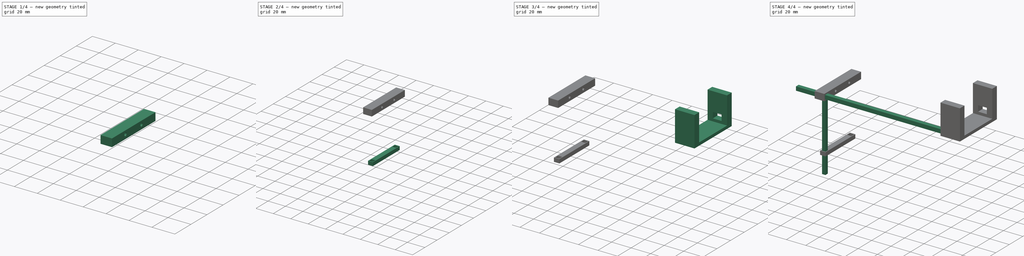
[diagram: build sequence overview — one tinted view per stage of 4, left to right]
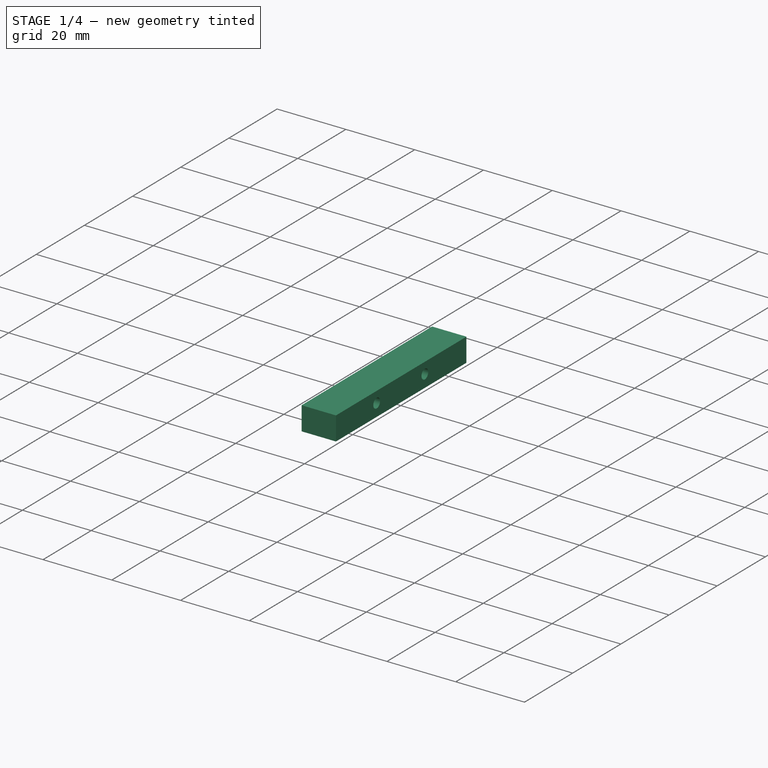
[diagram: stage 1 of 4 — iso view after this stage's code; geometry added in this stage tinted green]
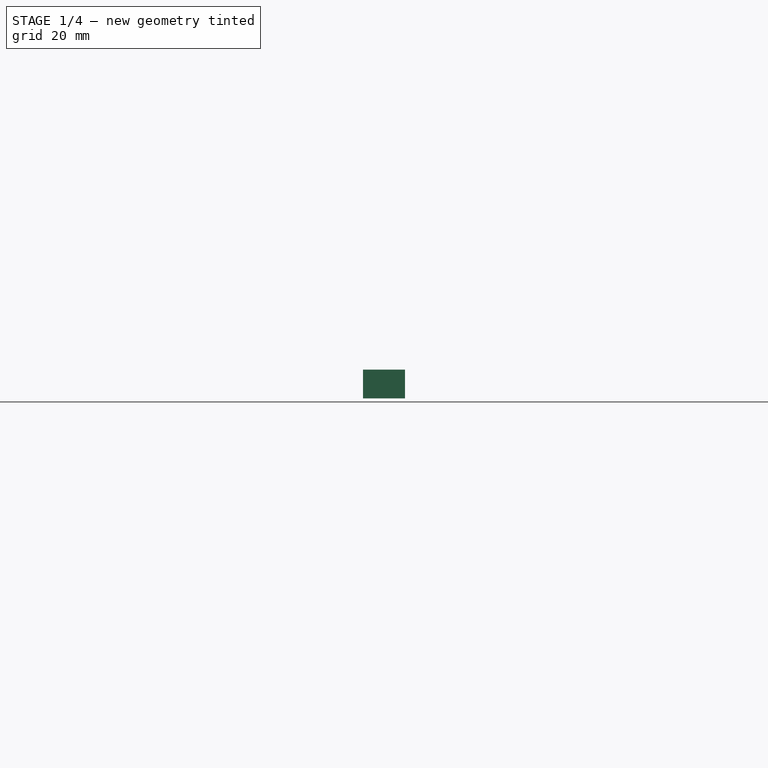
[diagram: stage 1 of 4 — front view after this stage's code; geometry added in this stage tinted green]
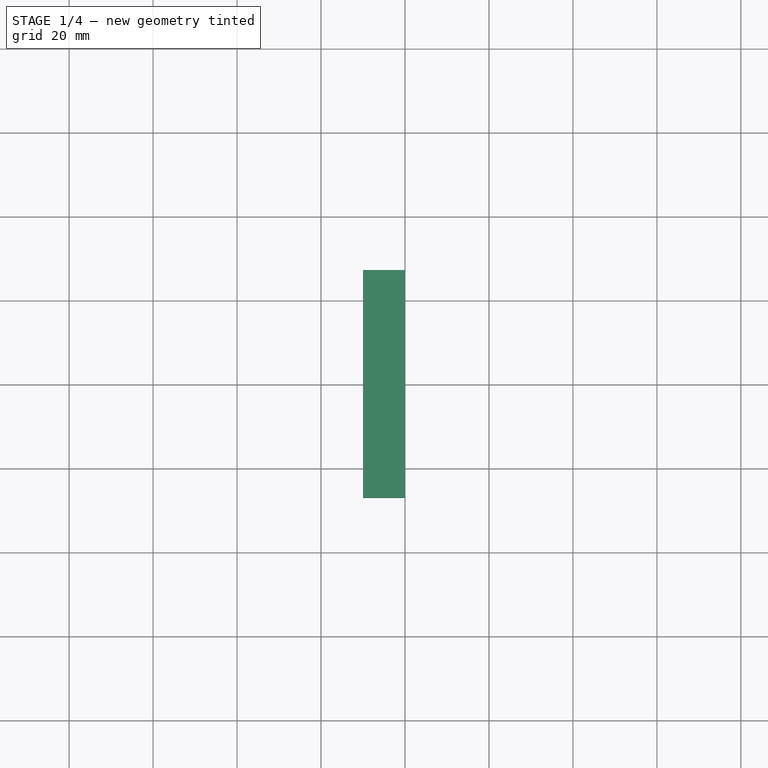
[diagram: stage 1 of 4 — top view after this stage's code; geometry added in this stage tinted green]
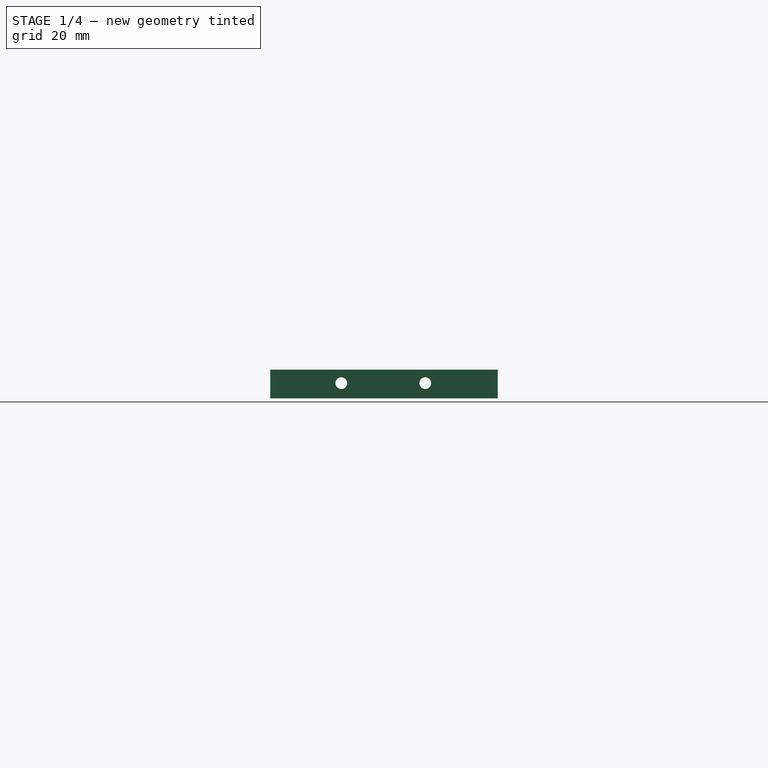
[diagram: stage 1 of 4 — right view after this stage's code; geometry added in this stage tinted green]
FCSTD DOCUMENT  (FreeCAD 0.19R24366 (Git))
Label: internalstructure
License: All rights reserved
LicenseURL: http://en.wikipedia.org/wiki/All_rights_reserved
objects: Part::FeaturePython×46, App::FeaturePython×17, App::Link×11, Sketcher::SketchObject×9, PartDesign::Pad×5, PartDesign::Body×5, App::Part×5, PartDesign::Pocket×4
note: 77 computed .brp shape members not serialized (recipe doc carries the construction recipe); baked Part::Feature solids carry a one-line shape summary decoded from their .brp
EXTERNAL_REF file=MotorAndHolder_v1.FCStd obj=Part001
EXTERNAL_REF file=Battery_VoltaicV70.FCStd obj=Part
EXTERNAL_REF file=MotorAndHolder_v1.FCStd obj=Part006
EXTERNAL_REF file=test.FCStd obj=Part

FEATURE [PartDesign::Body] Body004
  Group = -> [Sketch009,Sketch010,Pad004,Pocket004]
  Origin = -> Origin009
  Tip = -> Pocket004
FEATURE [App::Part] Part004  label="BatteryBottomConnector"
  Group = -> [Body004]
  Origin = -> Origin008
FEATURE [App::Link] Link010  label="StarboardConnector4x4x120mm001"
  LinkPlacement = pos=(-77,65,-6) rot=(0,0,1;0rad)
  LinkedObject = -> Part001
  Placement = pos=(-77,65,-6) rot=(0,0,1;0rad)
FEATURE [App::Link] Link009  label="PortConnector4x4x120mm"
  LinkPlacement = pos=(-77,17.3124,-6) rot=(0,0,1;0rad)
  LinkedObject = -> Part001
  Placement = pos=(-77,17.3124,-6) rot=(0,0,1;0rad)
FEATURE [App::Link] Link008  label="ServoHolderPart001"
  LinkPlacement = pos=(-82,17.1616,-6.09826) rot=(0,0,1;0rad)
  LinkedObject = -> Part
  Placement = pos=(-82,17.1616,-6.09826) rot=(0,0,1;0rad)
FEATURE [App::Link] Link013  label="Connector4x4x50mm_1"
  LinkPlacement = pos=(-58.3113,-32.47,-6.94535) rot=(0.406768,0.422033,-0.810202;1.09346rad)
  LinkedObject = -> Part003
  Placement = pos=(-58.3113,-32.47,-6.94535) rot=(0.406768,0.422033,-0.810202;1.09346rad)
FEATURE [App::Link] Link014  label="Connector4x4x50mm_002"
  LinkPlacement = pos=(-27.2761,-11.2422,-0.204668) rot=(0.406768,0.422033,-0.810202;1.09346rad)
  LinkedObject = -> Part003
  Placement = pos=(-27.2761,-11.2422,-0.204668) rot=(0.406768,0.422033,-0.810202;1.09346rad)
FEATURE [App::Link] Link015  label="BatteryBottomConnector001"
  LinkPlacement = pos=(-61.995,-22.0909,-22.4278) rot=(0.406768,0.422033,-0.810202;1.09346rad)
  LinkedObject = -> Part004
  Placement = pos=(-61.995,-22.0909,-22.4278) rot=(0.406768,0.422033,-0.810202;1.09346rad)
FEATURE [App::Link] Link  label="MotorHolder"
  LinkPlacement = pos=(-150.627,76.7929,74.012) rot=(0.941206,0.243222,0.234468;2.26967rad)
  LinkedObject = -> <external MotorAndHolder_v1.FCStd>#Part001
  Placement = pos=(-150.627,76.7929,74.012) rot=(0.941206,0.243222,0.234468;2.26967rad)
FEATURE [App::Link] Link016  label="PartBatteryVoltaicV70"
  LinkPlacement = pos=(-373,0.000171781,-93) rot=(0.548548,0.681735,0.484079;4.28615rad)
  LinkedObject = -> <external Battery_VoltaicV70.FCStd>#Part
  Placement = pos=(-373,0.000171781,-93) rot=(0.548548,0.681735,0.484079;4.28615rad)
FEATURE [App::Link] Link017  label="ConnectorRod2.5x200mm001"
  LinkPlacement = pos=(-93.8892,30.3514,15.7073) rot=(-0.529261,-0.748426,-0.399677;1.08373rad)
  LinkedObject = -> <external MotorAndHolder_v1.FCStd>#Part006
  Placement = pos=(-93.8892,30.3514,15.7073) rot=(-0.529261,-0.748426,-0.399677;1.08373rad)
FEATURE [App::Link] Link018  label="ConnectorRod2.5x200mm002"
  LinkPlacement = pos=(-114.238,23.92,16.3093) rot=(-0.736688,-0.674933,-0.041909;0.985761rad)
  LinkedObject = -> <external MotorAndHolder_v1.FCStd>#Part006
  Placement = pos=(-114.238,23.92,16.3093) rot=(-0.736688,-0.674933,-0.041909;0.985761rad)
FEATURE [Sketcher::SketchObject] Sketch004
  FullyConstrained = false
  Placement = pos=(-120,-2.7e-14,-4e-14) rot=(0.57735,0.57735,-0.57735;4.18879rad)
  sketch-geometry (4):
    g0: LineSegment StartX=-26.9181 StartY=22.4909 StartZ=0 EndX=27.2601 EndY=22.4909 EndZ=0
    g1: LineSegment StartX=27.2601 StartY=22.4909 StartZ=0 EndX=27.2601 EndY=15.6382 EndZ=0
    g2: LineSegment StartX=27.2601 StartY=15.6382 StartZ=0 EndX=-26.9181 EndY=15.6382 EndZ=0
    g3: LineSegment StartX=-26.9181 StartY=15.6382 StartZ=0 EndX=-26.9181 EndY=22.4909 EndZ=0
  constraints (8):
    c: Coincident(g0,g1)
    c: Coincident(g1,g2)
    c: Coincident(g2,g3)
    c: Coincident(g3,g0)
    c: Horizontal(g0)
    c: Horizontal(g2)
    c: Vertical(g1)
    c: Vertical(g3)
FEATURE [PartDesign::Pad] Pad002
  Direction = (1,1,1)
  Length = 10
  Length2 = 100
  Placement = pos=(-120,-2.7e-14,-4e-14) rot=(0.57735,0.57735,-0.57735;4.18879rad)
  Profile = -> Sketch004
  Type = 0
FEATURE [Sketcher::SketchObject] Sketch011
  ExternalGeometry = -> [Pad002]
  FullyConstrained = false
  MapMode = 5
  Placement = pos=(-130,-2.7e-14,-4e-14) rot=(0.57735,0.57735,-0.57735;4.18879rad)
  Support = -> [Pad002]
  sketch-geometry (6):
    g0: Circle CenterX=-10 CenterY=18.8622 CenterZ=0 NormalX=0 NormalY=0 NormalZ=1 AngleXU=0 Radius=1.4
    g1: Circle CenterX=10 CenterY=18.8622 CenterZ=0 NormalX=0 NormalY=0 NormalZ=1 AngleXU=0 Radius=1.4
    g2: LineSegment StartX=10 StartY=18.8622 StartZ=0 EndX=0 EndY=18.8622 EndZ=0
    g3: LineSegment StartX=-10 StartY=18.8622 StartZ=0 EndX=0 EndY=18.8622 EndZ=0
    g4: LineSegment StartX=-26.9181 StartY=18.8622 StartZ=0 EndX=-10 EndY=18.8622 EndZ=0
    g5: LineSegment StartX=10 StartY=18.8622 StartZ=0 EndX=27.2601 EndY=18.8622 EndZ=0
  constraints (16):
    c: Horizontal(g1,g0)
    c: Coincident(g2,g1)
    c: PointOnObject(g2,g-2)
    c: Horizontal(g2)
    c: Coincident(g3,g0)
    c: Coincident(g3,g2)
    c: Equal(g2,g3)
    c: DistanceX(g0,g1) = 20
    c: Equal(g0,g1)
    c: Diameter(g0) = 2.8
    c: PointOnObject(g4,g-4)
    c: Horizontal(g4)
    c: Coincident(g5,g1)
    c: PointOnObject(g5,g-3)
    c: Horizontal(g5)
    c: Coincident(g0,g4)
FEATURE [PartDesign::Pocket] Pocket005
  BaseFeature = -> Pad002
  Length = 25
  Length2 = 100
  Placement = pos=(-120,-2.7e-14,-4e-14) rot=(0.57735,0.57735,-0.57735;4.18879rad)
  Profile = -> Sketch011
  Type = 0
FEATURE [PartDesign::Body] Body002
  Group = -> [Sketch004,Pad002,Sketch011,Pocket005]
  Origin = -> Origin005
  Tip = -> Pocket005
FEATURE [App::Part] Part002  label="BatteryVerticalConnect"
  Group = -> [Body002]
  Origin = -> Origin004
  Placement = pos=(-61.525,-15.3822,-45.9494) rot=(0.873997,-0.430968,-0.22449;3.56776rad)
FEATURE [App::Link] Link019  label="Connector"
  LinkPlacement = pos=(-178.657,-39.8223,-130.615) rot=(-0.086869,0.081007,0.992921;1.64769rad)
  LinkedObject = -> <external test.FCStd>#Part
  Placement = pos=(-178.657,-39.8223,-130.615) rot=(-0.086869,0.081007,0.992921;1.64769rad)
FEATURE [Part::FeaturePython] Parts001  # WARN: FeaturePython — macro-defined, semantics opaque (R4)
  Group = -> [Link008,Link009,Link010,Link014,Link013,Link015,Link,Link017,Link018,Part002,Link019]
  GroupMode = 0
FEATURE [Part::FeaturePython] _Element024  # link proxy (typed FeaturePython)
  Detach = false
  LinkTransform = true
  LinkedObject = -> Link010 [Body001.Pad001.Face4]
  _Parent = -> Elements001
FEATURE [Part::FeaturePython] _Element028  # link proxy (typed FeaturePython)
  Detach = false
  LinkTransform = true
  LinkedObject = -> Link009 [Body001.Pad001.Face2]
  _Parent = -> Elements001
FEATURE [Part::FeaturePython] _Element030  # link proxy (typed FeaturePython)
  Detach = false
  LinkTransform = true
  LinkedObject = -> Link010 [Body001.Pad001.Face6]
  _Parent = -> Elements001
FEATURE [Part::FeaturePython] _Element031  # link proxy (typed FeaturePython)
  Detach = false
  LinkTransform = true
  LinkedObject = -> Link009 [Body001.Pad001.Face6]
  _Parent = -> Elements001
FEATURE [Part::FeaturePython] _Element032  # link proxy (typed FeaturePython)
  Detach = false
  LinkTransform = true
  LinkedObject = -> Link008 [Body.Pocket001.Face23]
  _Parent = -> Elements001
FEATURE [Part::FeaturePython] _Element033  # link proxy (typed FeaturePython)
  Detach = false
  LinkTransform = true
  LinkedObject = -> Link010 [Body001.Pad001.Face5]
  _Parent = -> Elements001
FEATURE [Part::FeaturePython] _Element034  # link proxy (typed FeaturePython)
  Detach = false
  LinkTransform = true
  LinkedObject = -> Link008 [Body.Pocket001.Face22]
  _Parent = -> Elements001
FEATURE [App::FeaturePython] ElementLink014  label="_Element034"  # link proxy (typed FeaturePython)
  LinkTransform = true
  LinkedObject = -> _Element034
  _Parent = -> Constraint007
FEATURE [Part::FeaturePython] _Element035  # link proxy (typed FeaturePython)
  Detach = false
  LinkTransform = true
  LinkedObject = -> Link009 [Body001.Pad001.Face4]
  _Parent = -> Elements001
FEATURE [App::FeaturePython] ElementLink015  label="_Element035"  # link proxy (typed FeaturePython)
  LinkTransform = true
  LinkedObject = -> _Element035
  _Parent = -> Constraint007
FEATURE [App::FeaturePython] Constraint007  label="SameOrientation001"  # WARN: FeaturePython — macro-defined, semantics opaque (R4)
  Disabled = false
  Group = -> [ElementLink014,ElementLink015]
  _ConstraintType = 2
  _Parent = -> Constraints001
FEATURE [Part::FeaturePython] _Element044  # link proxy (typed FeaturePython)
  Detach = false
  LinkTransform = true
  LinkedObject = -> Link013 [Body003.Pad003.Face2]
  _Parent = -> Elements001
FEATURE [Part::FeaturePython] _Element037  # link proxy (typed FeaturePython)
  Detach = false
  LinkTransform = true
  LinkedObject = -> Link013 [Body003.Pad003.Face5]
  _Parent = -> Elements001
FEATURE [Part::FeaturePython] _Element046  # link proxy (typed FeaturePython)
  Detach = false
  LinkTransform = true
  LinkedObject = -> Link014 [Body003.Pad003.Face5]
  _Parent = -> Elements001
FEATURE [Part::FeaturePython] _Element047  # link proxy (typed FeaturePython)
  Detach = false
  LinkTransform = true
  LinkedObject = -> Link014 [Body003.Pad003.Face1]
  _Parent = -> Elements001
FEATURE [Part::FeaturePython] _Element026  # link proxy (typed FeaturePython)
  Detach = false
  LinkTransform = true
  LinkedObject = -> Link010 [Body001.Pad001.Face3]
  _Parent = -> Elements001
FEATURE [Part::FeaturePython] _Element053  # link proxy (typed FeaturePython)
  Detach = false
  LinkTransform = true
  LinkedObject = -> Link009 [Body001.Pad001.Face3]
  _Parent = -> Elements001
FEATURE [Part::FeaturePython] _Element054  # link proxy (typed FeaturePython)
  Detach = false
  LinkTransform = true
  LinkedObject = -> Link015 [Body004.Pocket004.Face16]
  _Parent = -> Elements001
FEATURE [App::FeaturePython] ElementLink032  label="_Element054"  # link proxy (typed FeaturePython)
  LinkTransform = true
  LinkedObject = -> _Element054
  _Parent = -> Constraint016
FEATURE [Part::FeaturePython] _Element055  # link proxy (typed FeaturePython)
  Detach = false
  LinkTransform = true
  LinkedObject = -> Link014 [Body003.Pad003.Face6]
  _Parent = -> Elements001
FEATURE [App::FeaturePython] ElementLink033  label="_Element055"  # link proxy (typed FeaturePython)
  LinkTransform = true
  LinkedObject = -> _Element055
  _Parent = -> Constraint016
FEATURE [App::FeaturePython] Constraint016  label="PlaneCoincident004"  # WARN: FeaturePython — macro-defined, semantics opaque (R4)
  Angle = 0
  AnglePitch = 0
  AngleRoll = 0
  Cascade = false
  Disabled = false
  Group = -> [ElementLink032,ElementLink033]
  LockAngle = false
  Multiply = false
  OffsetX = 0
  OffsetY = 0
  _ConstraintType = 35
  _Parent = -> Constraints001
FEATURE [Part::FeaturePython] _Element056  # link proxy (typed FeaturePython)
  Detach = false
  LinkTransform = true
  LinkedObject = -> Link014 [Body003.Pad003.Face4]
  _Parent = -> Elements001
FEATURE [App::FeaturePython] ElementLink034  label="_Element056"  # link proxy (typed FeaturePython)
  LinkTransform = true
  LinkedObject = -> _Element056
  _Parent = -> Constraint017
FEATURE [Part::FeaturePython] _Element057  # link proxy (typed FeaturePython)
  Detach = false
  LinkTransform = true
  LinkedObject = -> Link015 [Body004.Pocket004.Face13]
  _Parent = -> Elements001
FEATURE [App::FeaturePython] ElementLink035  label="_Element057"  # link proxy (typed FeaturePython)
  LinkTransform = true
  LinkedObject = -> _Element057
  _Parent = -> Constraint017
FEATURE [App::FeaturePython] Constraint017  label="MultiParallel001"  # WARN: FeaturePython — macro-defined, semantics opaque (R4)
  Angle = 0
  AnglePitch = 0
  AngleRoll = 0
  Disabled = false
  Group = -> [ElementLink034,ElementLink035]
  LockAngle = false
  _ConstraintType = 291
  _Parent = -> Constraints001
FEATURE [App::FeaturePython] Constraints001  # WARN: FeaturePython — macro-defined, semantics opaque (R4)
  Group = -> [Constraint007,Constraint016,Constraint017,Constraint018,Constraint020]
  _Version = 1
FEATURE [Part::FeaturePython] _Element039  # link proxy (typed FeaturePython)
  Detach = false
  LinkTransform = true
  LinkedObject = -> Link013 [Body003.Pad003.Face1]
  _Parent = -> Elements001
FEATURE [Part::FeaturePython] _Element041  # link proxy (typed FeaturePython)
  Detach = false
  LinkTransform = true
  LinkedObject = -> Link013 [Body003.Pad003.Face4]
  _Parent = -> Elements001
FEATURE [Part::FeaturePython] _Element050  # link proxy (typed FeaturePython)
  Detach = false
  LinkTransform = true
  LinkedObject = -> Link010 [Body001.Pad001.Face1]
  _Parent = -> Elements001
FEATURE [App::FeaturePython] Elements001  # WARN: FeaturePython — macro-defined, semantics opaque (R4)
  Group = -> [_Element024,_Element026,_Element028,_Element030,_Element031,_Element032,_Element033,_Element034,_Element035,_Element037,_Element039,_Element041,_Element044,_Element046,_Element047,_Element050,_Element053,_Element054,_Element055,_Element056,_Element057,Element,Element001,Element002,Element003,Element004,_Element,_Element061,_Element062,_Element064,_Element065,Element005,Element006,Element007,+10 more]
FEATURE [Part::FeaturePython] Assembly001  label="InternalHolder"  # WARN: FeaturePython — macro-defined, semantics opaque (R4)
  AutoRelax = true
  BuildShape = 0
  Freeze = false
  Group = -> [Constraints001,Elements001,Parts001]
  Verbose = false
  _SolverType = 1
  _Version = 1
FEATURE [Part::FeaturePython] Element  # link proxy (typed FeaturePython)
  Detach = false
  LinkTransform = true
  LinkedObject = -> Link015 [Body004.Pocket004.Face4]
  _Parent = -> Elements001
FEATURE [Part::FeaturePython] Element001  # link proxy (typed FeaturePython)
  Detach = false
  LinkTransform = true
  LinkedObject = -> Link014 [Body003.Pad003.Face2]
  _Parent = -> Elements001
FEATURE [Part::FeaturePython] Element002  # link proxy (typed FeaturePython)
  Detach = false
  LinkTransform = true
  LinkedObject = -> Link008 [Body.Pocket001.Face1]
  _Parent = -> Elements001
FEATURE [Part::FeaturePython] Element003  # link proxy (typed FeaturePython)
  Detach = false
  LinkTransform = true
  LinkedObject = -> Link008 [Body.Pocket001.Face2]
  _Parent = -> Elements001
FEATURE [Part::FeaturePython] Element004  # link proxy (typed FeaturePython)
  Detach = false
  LinkTransform = true
  LinkedObject = -> Link008 [Body.Pocket001.Face11]
  _Parent = -> Elements001
FEATURE [Part::FeaturePython] _Element  # link proxy (typed FeaturePython)
  Detach = false
  LinkTransform = true
  LinkedObject = -> Link [Body001.Pocket003.Face17]
  _Parent = -> Elements001
FEATURE [Part::FeaturePython] _Element061  # link proxy (typed FeaturePython)
  Detach = false
  LinkTransform = true
  LinkedObject = -> Link017 [Body006.Pad006.Face1]
  _Parent = -> Elements001
FEATURE [App::FeaturePython] Constraint018  label="AxialAlignment001"  # WARN: FeaturePython — macro-defined, semantics opaque (R4)
  Angle = 0
  AnglePitch = 0
  AngleRoll = 0
  Disabled = false
  Group = -> [ElementLink037,ElementLink038]
  LockAngle = false
  Multiply = false
  _ConstraintType = 36
  _Parent = -> Constraints001
FEATURE [App::FeaturePython] ElementLink037  label="_Element062"  # link proxy (typed FeaturePython)
  LinkTransform = true
  LinkedObject = -> _Element062
  _Parent = -> Constraint018
FEATURE [Part::FeaturePython] _Element062  # link proxy (typed FeaturePython)
  Detach = false
  LinkTransform = true
  LinkedObject = -> Link [Body001.Pocket004.Face17]
  _Parent = -> Elements001
FEATURE [App::FeaturePython] ElementLink038  label="_Element061"  # link proxy (typed FeaturePython)
  LinkTransform = true
  LinkedObject = -> _Element061
  _Parent = -> Constraint018
FEATURE [Part::FeaturePython] _Element064  # link proxy (typed FeaturePython)
  Detach = false
  LinkTransform = true
  LinkedObject = -> Link018 [Body006.Pad006.Face1]
  _Parent = -> Elements001
FEATURE [App::FeaturePython] Constraint020  label="AxialAlignment003"  # WARN: FeaturePython — macro-defined, semantics opaque (R4)
  Angle = 0
  AnglePitch = 0
  AngleRoll = 0
  Disabled = false
  Group = -> [ElementLink041,ElementLink042]
  LockAngle = false
  Multiply = false
  _ConstraintType = 36
  _Parent = -> Constraints001
FEATURE [App::FeaturePython] ElementLink041  label="_Element064"  # link proxy (typed FeaturePython)
  LinkTransform = true
  LinkedObject = -> _Element064
  _Parent = -> Constraint020
FEATURE [App::FeaturePython] ElementLink042  label="_Element065"  # link proxy (typed FeaturePython)
  LinkTransform = true
  LinkedObject = -> _Element065
  _Parent = -> Constraint020
FEATURE [Part::FeaturePython] _Element065  # link proxy (typed FeaturePython)
  Detach = false
  LinkTransform = true
  LinkedObject = -> Link [Body001.Pocket004.Face18]
  _Parent = -> Elements001
FEATURE [Part::FeaturePython] Element005  # link proxy (typed FeaturePython)
  Detach = false
  LinkTransform = true
  LinkedObject = -> Link [Body001.Pocket004.Face7]
  _Parent = -> Elements001
FEATURE [Part::FeaturePython] Element006  # link proxy (typed FeaturePython)
  Detach = false
  LinkTransform = true
  LinkedObject = -> Link [Body001.Pocket004.Face4]
  _Parent = -> Elements001
FEATURE [Part::FeaturePython] Element007  # link proxy (typed FeaturePython)
  Detach = false
  LinkTransform = true
  LinkedObject = -> Link [Body001.Pocket004.Face3]
  _Parent = -> Elements001
FEATURE [Part::FeaturePython] Element008  # link proxy (typed FeaturePython)
  Detach = false
  LinkTransform = true
  LinkedObject = -> Link [Body001.Pocket004.Face14]
  _Parent = -> Elements001
FEATURE [Part::FeaturePython] Element009  # link proxy (typed FeaturePython)
  Detach = false
  LinkTransform = true
  LinkedObject = -> Link [Body001.Pocket004.Face13]
  _Parent = -> Elements001
FEATURE [Part::FeaturePython] Element010  # link proxy (typed FeaturePython)
  Detach = false
  LinkTransform = true
  LinkedObject = -> Link [Body001.Pocket004.Edge11]
  _Parent = -> Elements001
FEATURE [Part::FeaturePython] Element011  # link proxy (typed FeaturePython)
  Detach = false
  LinkTransform = true
  LinkedObject = -> Link [Body001.Pocket004.Face5]
  _Parent = -> Elements001
FEATURE [Part::FeaturePython] Element012  # link proxy (typed FeaturePython)
  Detach = false
  LinkTransform = true
  LinkedObject = -> Link017 [Body006.Pad006.Edge1]
  _Parent = -> Elements001
FEATURE [Part::FeaturePython] Element014  # link proxy (typed FeaturePython)
  Detach = false
  LinkTransform = true
  LinkedObject = -> Link [Body001.Pocket004.Face20]
  _Parent = -> Elements001
FEATURE [Part::FeaturePython] Element015  # link proxy (typed FeaturePython)
  Detach = false
  LinkTransform = true
  LinkedObject = -> Link015 [Body004.Pocket004.Face2]
  _Parent = -> Elements001
FEATURE [Part::FeaturePython] Element018  # link proxy (typed FeaturePython)
  Detach = false
  LinkTransform = true
  LinkedObject = -> Link015 [Body004.Pocket004.Face6]
  _Parent = -> Elements001
FEATURE [Part::FeaturePython] _Element066  # link proxy (typed FeaturePython)
  Detach = false
  LinkTransform = true
  LinkedObject = -> Link019 [Body.Pad.Face10]
  _Parent = -> Elements001
FEATURE [Part::FeaturePython] _Element067  # link proxy (typed FeaturePython)
  Detach = false
  LinkTransform = true
  LinkedObject = -> Part002 [Body002.Pocket005.Face2]
  _Parent = -> Elements001
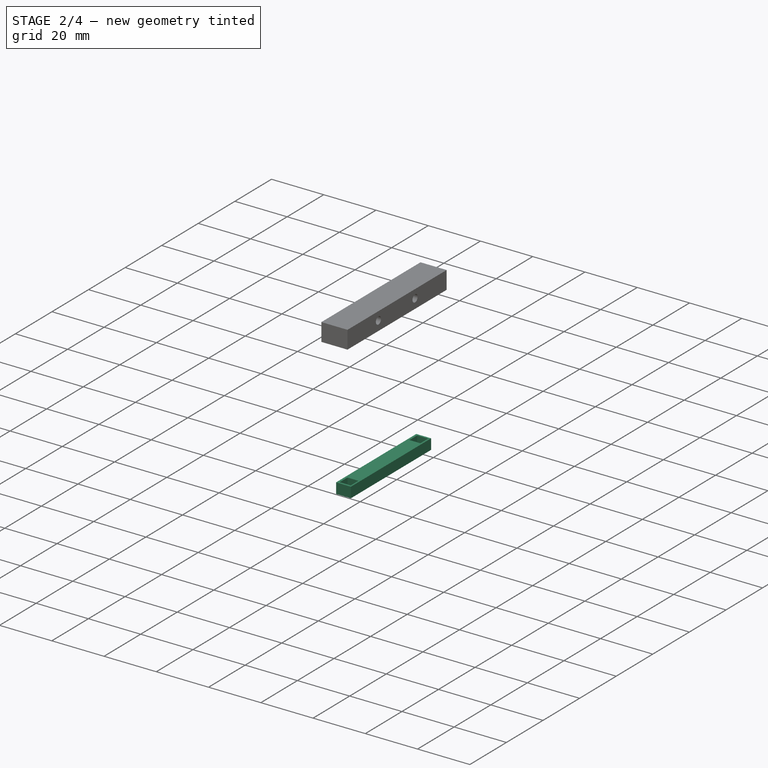
[diagram: stage 2 of 4 — iso view after this stage's code; geometry added in this stage tinted green]
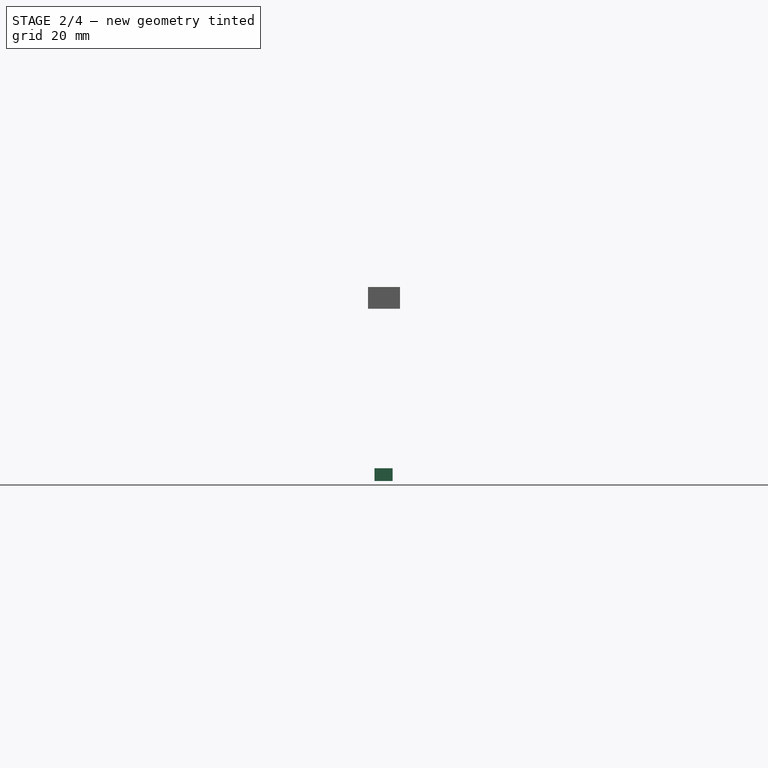
[diagram: stage 2 of 4 — front view after this stage's code; geometry added in this stage tinted green]
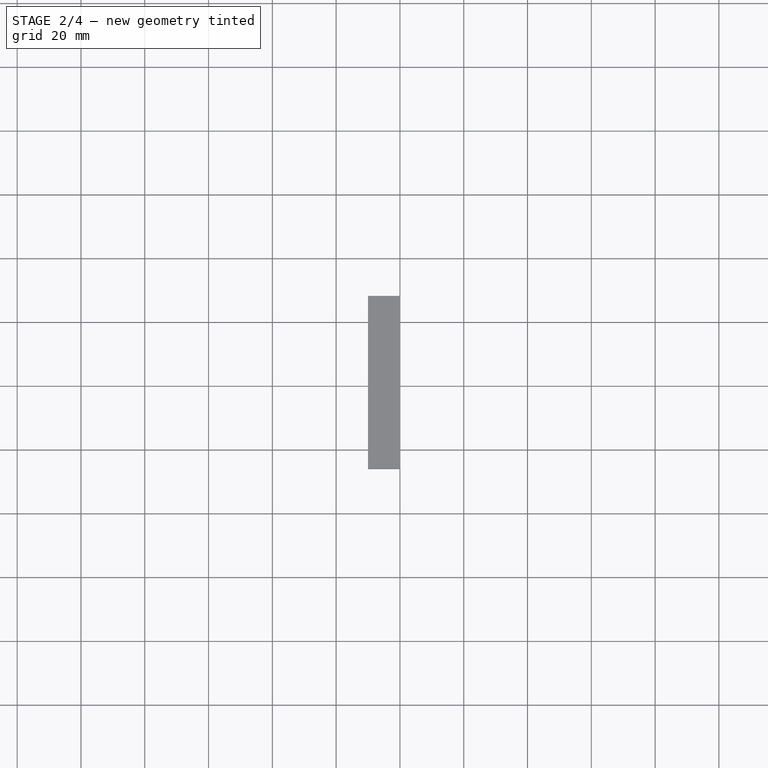
[diagram: stage 2 of 4 — top view after this stage's code; geometry added in this stage tinted green]
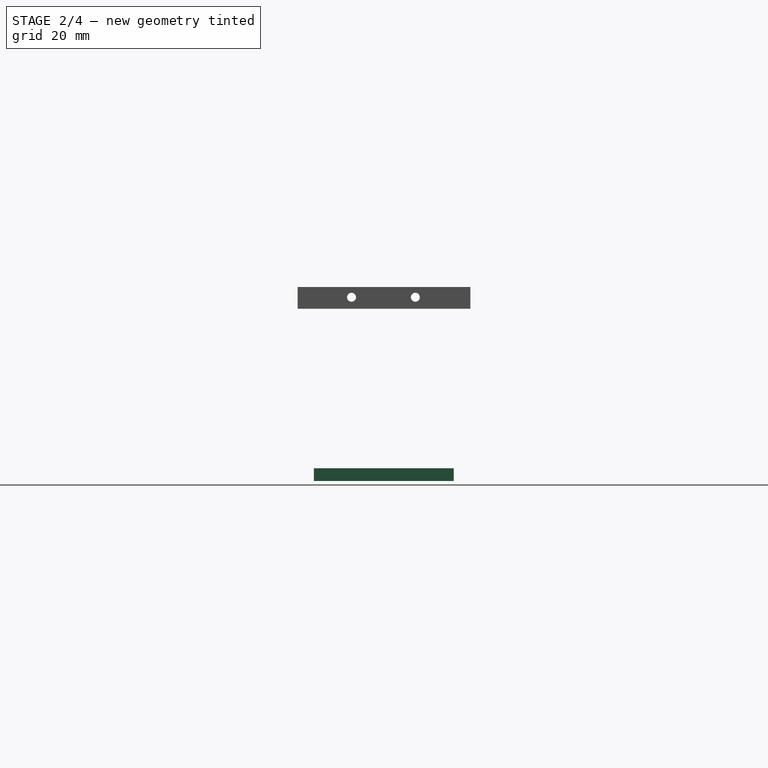
[diagram: stage 2 of 4 — right view after this stage's code; geometry added in this stage tinted green]
FEATURE [PartDesign::Body] Body003
  Group = -> [Sketch008,Pad003]
  Origin = -> Origin006
  Tip = -> Pad003
FEATURE [App::Part] Part003  label="Connector4x4x72mm"
  Group = -> [Body003]
  Origin = -> Origin007
FEATURE [Sketcher::SketchObject] Sketch009
  FullyConstrained = false
  Placement = pos=(-120,3.5e-14,-72.4909) rot=(0.707107,-0.707107,0;3.14159rad)
  sketch-geometry (4):
    g0: LineSegment StartX=-22.0524 StartY=7.96105 StartZ=0 EndX=21.7963 EndY=7.96105 EndZ=0
    g1: LineSegment StartX=21.7963 StartY=7.96105 StartZ=0 EndX=21.7963 EndY=2.30544 EndZ=0
    g2: LineSegment StartX=21.7963 StartY=2.30544 StartZ=0 EndX=-22.0524 EndY=2.30544 EndZ=0
    g3: LineSegment StartX=-22.0524 StartY=2.30544 StartZ=0 EndX=-22.0524 EndY=7.96105 EndZ=0
  constraints (8):
    c: Coincident(g0,g1)
    c: Coincident(g1,g2)
    c: Coincident(g2,g3)
    c: Coincident(g3,g0)
    c: Horizontal(g0)
    c: Horizontal(g2)
    c: Vertical(g1)
    c: Vertical(g3)
FEATURE [Sketcher::SketchObject] Sketch010
  FullyConstrained = false
  Placement = pos=(-120,2.3e-14,-72.4909) rot=(0,0,-1;1.5708rad)
  sketch-geometry (8):
    g0: LineSegment StartX=16.8176 StartY=-7.09377 StartZ=0 EndX=21.0176 EndY=-7.09377 EndZ=0
    g1: LineSegment StartX=21.0176 StartY=-7.09377 StartZ=0 EndX=21.0176 EndY=-2.89377 EndZ=0
    g2: LineSegment StartX=21.0176 StartY=-2.89377 StartZ=0 EndX=16.8176 EndY=-2.89377 EndZ=0
    g3: LineSegment StartX=16.8176 StartY=-2.89377 StartZ=0 EndX=16.8176 EndY=-7.09377 EndZ=0
    g4: LineSegment StartX=-17.1303 StartY=-7.13419 StartZ=0 EndX=-21.3303 EndY=-7.13419 EndZ=0
    g5: LineSegment StartX=-21.3303 StartY=-7.13419 StartZ=0 EndX=-21.3303 EndY=-2.93419 EndZ=0
    g6: LineSegment StartX=-21.3303 StartY=-2.93419 StartZ=0 EndX=-17.1303 EndY=-2.93419 EndZ=0
    g7: LineSegment StartX=-17.1303 StartY=-2.93419 StartZ=0 EndX=-17.1303 EndY=-7.13419 EndZ=0
  constraints (20):
    c: Coincident(g0,g1)
    c: Coincident(g1,g2)
    c: Coincident(g2,g3)
    c: Coincident(g3,g0)
    c: Horizontal(g0)
    c: Horizontal(g2)
    c: Vertical(g1)
    c: Vertical(g3)
    c: Equal(g2,g1)
    c: DistanceX(g2,g2) = 4.2
    c: Coincident(g4,g5)
    c: Coincident(g5,g6)
    c: Coincident(g6,g7)
    c: Coincident(g7,g4)
    c: Horizontal(g4)
    c: Horizontal(g6)
    c: Vertical(g5)
    c: Vertical(g7)
    c: Equal(g5,g6)
    c: DistanceX(g6,g6) = 4.2
FEATURE [PartDesign::Pad] Pad004
  Direction = (1,1,1)
  Length = 4
  Length2 = 100
  Placement = pos=(-120,3.5e-14,-72.4909) rot=(0.707107,-0.707107,0;3.14159rad)
  Profile = -> Sketch009
  Type = 0
FEATURE [PartDesign::Pocket] Pocket004
  BaseFeature = -> Pad004
  Length = 3
  Length2 = 100
  Placement = pos=(-120,3.5e-14,-72.4909) rot=(0.707107,-0.707107,0;3.14159rad)
  Profile = -> Sketch010
  Type = 0
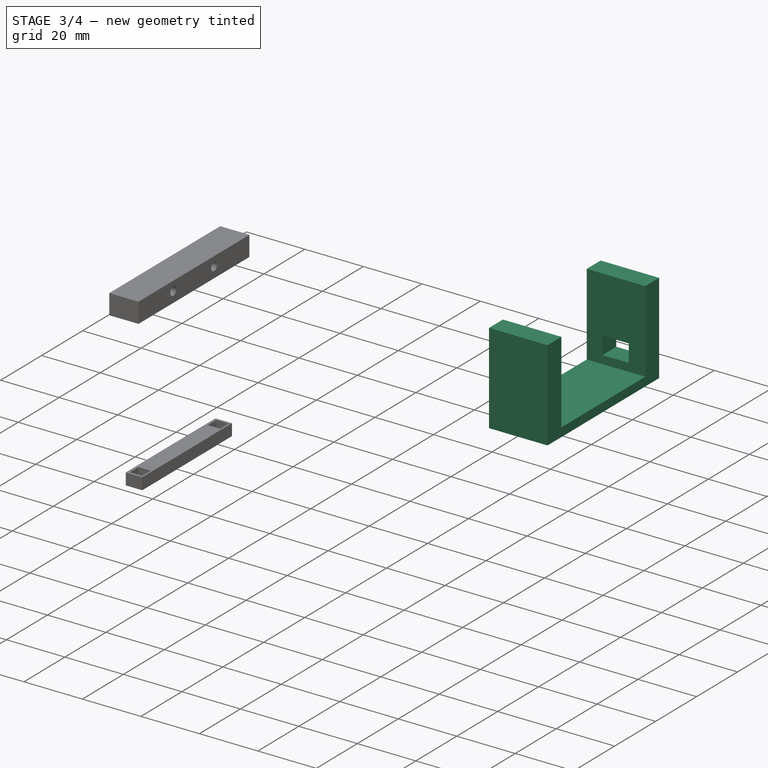
[diagram: stage 3 of 4 — iso view after this stage's code; geometry added in this stage tinted green]
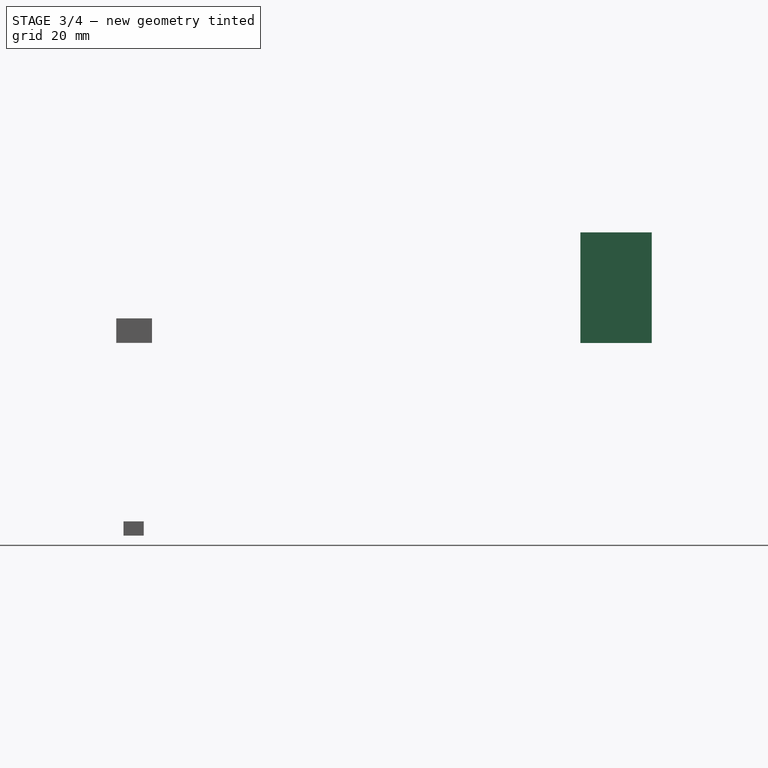
[diagram: stage 3 of 4 — front view after this stage's code; geometry added in this stage tinted green]
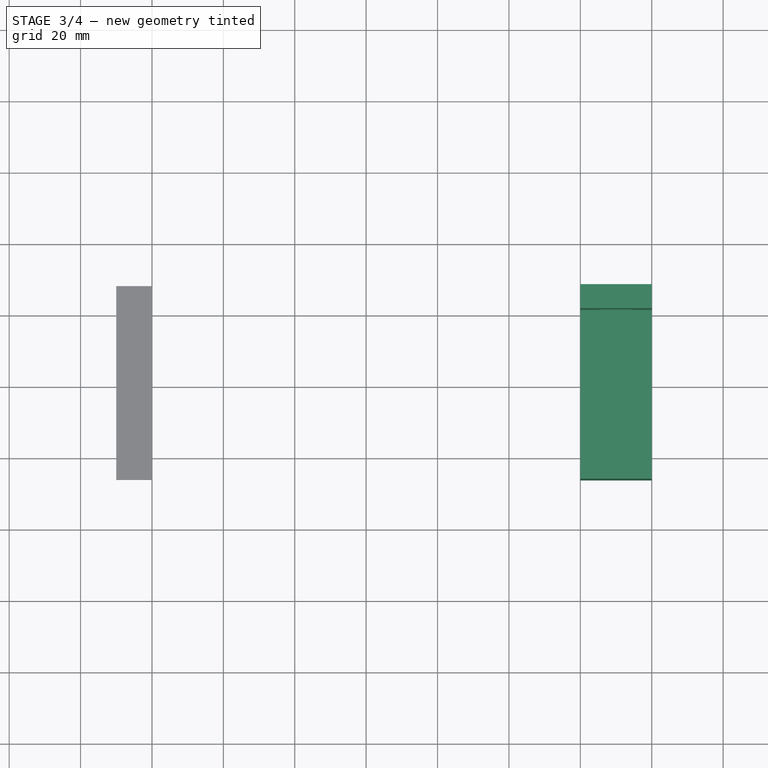
[diagram: stage 3 of 4 — top view after this stage's code; geometry added in this stage tinted green]
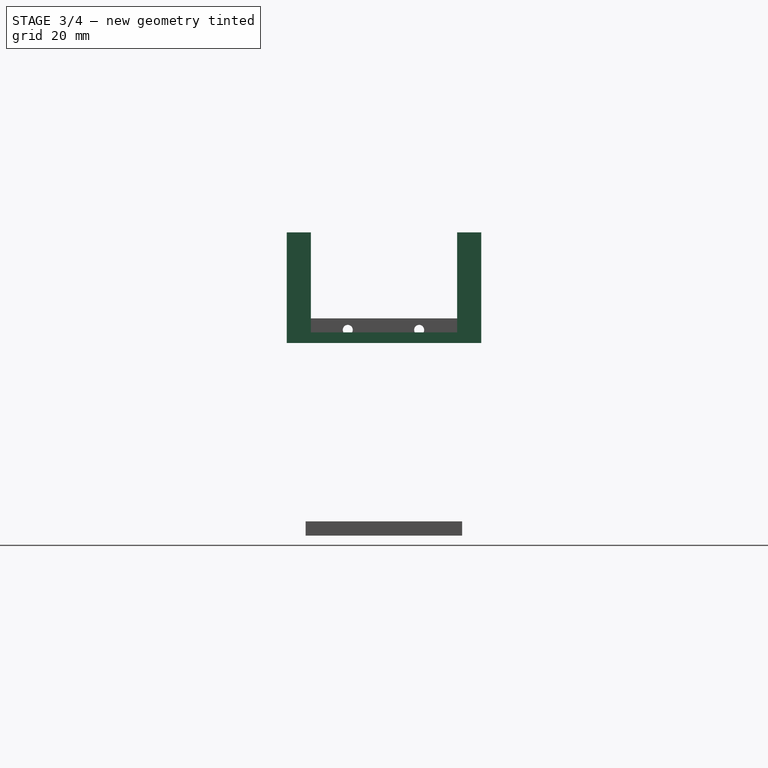
[diagram: stage 3 of 4 — right view after this stage's code; geometry added in this stage tinted green]
FEATURE [Sketcher::SketchObject] Sketch  label="ServoHolder"
  FullyConstrained = false
  MapMode = 4
  Placement = pos=(0,0,0) rot=(0.57735,0.57735,0.57735;2.0944rad)
  sketch-geometry (8):
    g0: LineSegment StartX=-27.0989 StartY=-22.5482 StartZ=0 EndX=27.4011 EndY=-22.5482 EndZ=0
    g1: LineSegment StartX=20.6511 StartY=-19.5482 StartZ=0 EndX=20.6511 EndY=8.45178 EndZ=0
    g2: LineSegment StartX=20.6511 StartY=8.45178 StartZ=0 EndX=27.4011 EndY=8.45178 EndZ=0
    g3: LineSegment StartX=-20.3489 StartY=-19.5482 StartZ=0 EndX=-20.3489 EndY=8.45178 EndZ=0
    g4: LineSegment StartX=-20.3489 StartY=8.45178 StartZ=0 EndX=-27.0989 EndY=8.45178 EndZ=0
    g5: LineSegment StartX=20.6511 StartY=-19.5482 StartZ=0 EndX=-20.3489 EndY=-19.5482 EndZ=0
    g6: LineSegment StartX=-27.0989 StartY=8.45178 StartZ=0 EndX=-27.0989 EndY=-22.5482 EndZ=0
    g7: LineSegment StartX=27.4011 StartY=8.45178 StartZ=0 EndX=27.4011 EndY=-22.5482 EndZ=0
  constraints (22):
    c: Horizontal(g0)
    c: Coincident(g1,g2)
    c: Horizontal(g2)
    c: Vertical(g1)
    c: Coincident(g3,g4)
    c: Horizontal(g4)
    c: Vertical(g3)
    c: Coincident(g5,g1)
    c: Coincident(g5,g3)
    c: Horizontal(g5)
    c: Coincident(g6,g4)
    c: Coincident(g6,g0)
    c: Vertical(g6)
    c: Coincident(g7,g2)
    c: Coincident(g7,g0)
    c: Vertical(g7)
    c: DistanceX(g0,g0) = 54.5
    c: DistanceX(g5,g5) = 41
    c: Equal(g4,g2)
    c: Horizontal(g3,g1)
    c: DistanceY(g0,g1) = 3
    c: DistanceY(g1,g1) = 28
FEATURE [PartDesign::Pad] Pad  label="ExtrudeServoHolder"
  Direction = (1,1,1)
  Length = 20
  Length2 = 100
  Placement = pos=(0,0,0) rot=(0.57735,0.57735,0.57735;2.0944rad)
  Profile = -> Sketch
  Type = 0
FEATURE [Sketcher::SketchObject] Sketch001  label="WireHoleSketch"
  FullyConstrained = false
  Placement = pos=(0,27.4011,0) rot=(0,0.707107,0.707107;3.14159rad)
  sketch-geometry (4):
    g0: LineSegment StartX=-5.36505 StartY=-10.7623 StartZ=0 EndX=-14.3651 EndY=-10.7623 EndZ=0
    g1: LineSegment StartX=-14.3651 StartY=-10.7623 StartZ=0 EndX=-14.3651 EndY=-16.7623 EndZ=0
    g2: LineSegment StartX=-14.3651 StartY=-16.7623 StartZ=0 EndX=-5.36505 EndY=-16.7623 EndZ=0
    g3: LineSegment StartX=-5.36505 StartY=-16.7623 StartZ=0 EndX=-5.36505 EndY=-10.7623 EndZ=0
  constraints (10):
    c: Coincident(g1,g2)
    c: Coincident(g2,g3)
    c: Coincident(g3,g0)
    c: Horizontal(g0)
    c: Horizontal(g2)
    c: Vertical(g1)
    c: Vertical(g3)
    c: Coincident(g1,g0)
    c: DistanceX(g0,g0) = 9
    c: DistanceY(g1,g1) = 6
FEATURE [PartDesign::Pocket] Pocket  label="ServoHolder001"
  BaseFeature = -> Pad
  Length = 8
  Length2 = 100
  Placement = pos=(0,0,0) rot=(0.57735,0.57735,0.57735;2.0944rad)
  Profile = -> Sketch001
  Type = 0
FEATURE [Sketcher::SketchObject] Sketch002  label="HorizontalSupportHole"
  FullyConstrained = false
  MapMode = 5
  Placement = pos=(0,0,0) rot=(0.57735,0.57735,-0.57735;4.18879rad)
  Support = -> [Pocket]
  sketch-geometry (8):
    g0: LineSegment StartX=-25.8969 StartY=20.9931 StartZ=0 EndX=-21.6969 EndY=20.9931 EndZ=0
    g1: LineSegment StartX=-21.6969 StartY=20.9931 StartZ=0 EndX=-21.6969 EndY=16.7931 EndZ=0
    g2: LineSegment StartX=-21.6969 StartY=16.7931 StartZ=0 EndX=-25.8969 EndY=16.7931 EndZ=0
    g3: LineSegment StartX=-25.8969 StartY=16.7931 StartZ=0 EndX=-25.8969 EndY=20.9931 EndZ=0
    g4: LineSegment StartX=26.0415 StartY=16.7931 StartZ=0 EndX=21.8415 EndY=16.7931 EndZ=0
    g5: LineSegment StartX=21.8415 StartY=16.7931 StartZ=0 EndX=21.8415 EndY=20.9931 EndZ=0
    g6: LineSegment StartX=21.8415 StartY=20.9931 StartZ=0 EndX=26.0415 EndY=20.9931 EndZ=0
    g7: LineSegment StartX=26.0415 StartY=20.9931 StartZ=0 EndX=26.0415 EndY=16.7931 EndZ=0
  constraints (21):
    c: Coincident(g0,g1)
    c: Coincident(g1,g2)
    c: Coincident(g2,g3)
    c: Coincident(g3,g0)
    c: Horizontal(g0)
    c: Horizontal(g2)
    c: Vertical(g1)
    c: Vertical(g3)
    c: Equal(g0,g1)
    c: DistanceY(g1,g1) = 4.2
    c: Coincident(g4,g5)
    c: Coincident(g5,g6)
    c: Coincident(g6,g7)
    c: Coincident(g7,g4)
    c: Horizontal(g4)
    c: Horizontal(g6)
    c: Vertical(g5)
    c: Vertical(g7)
    c: Equal(g4,g5)
    c: DistanceY(g5,g5) = 4.2  'support_width'
    c: Horizontal(g4,g1)
FEATURE [PartDesign::Pocket] Pocket001  label="SupportPocket"
  BaseFeature = -> Pocket
  Length = 5
  Length2 = 100
  Placement = pos=(0,0,0) rot=(0.57735,0.57735,0.57735;2.0944rad)
  Profile = -> Sketch002
  Type = 0
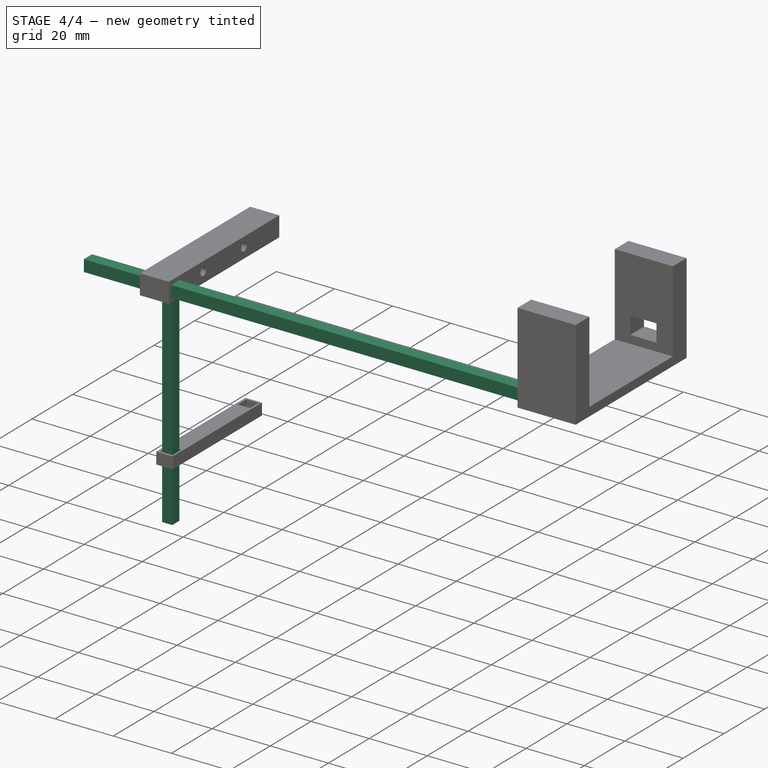
[diagram: stage 4 of 4 — iso view after this stage's code; geometry added in this stage tinted green]
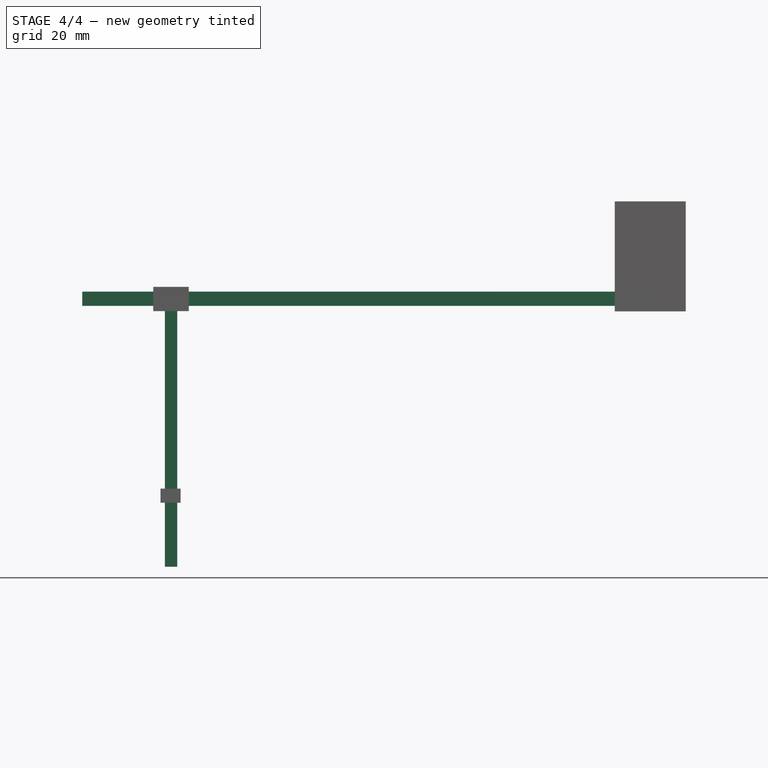
[diagram: stage 4 of 4 — front view after this stage's code; geometry added in this stage tinted green]
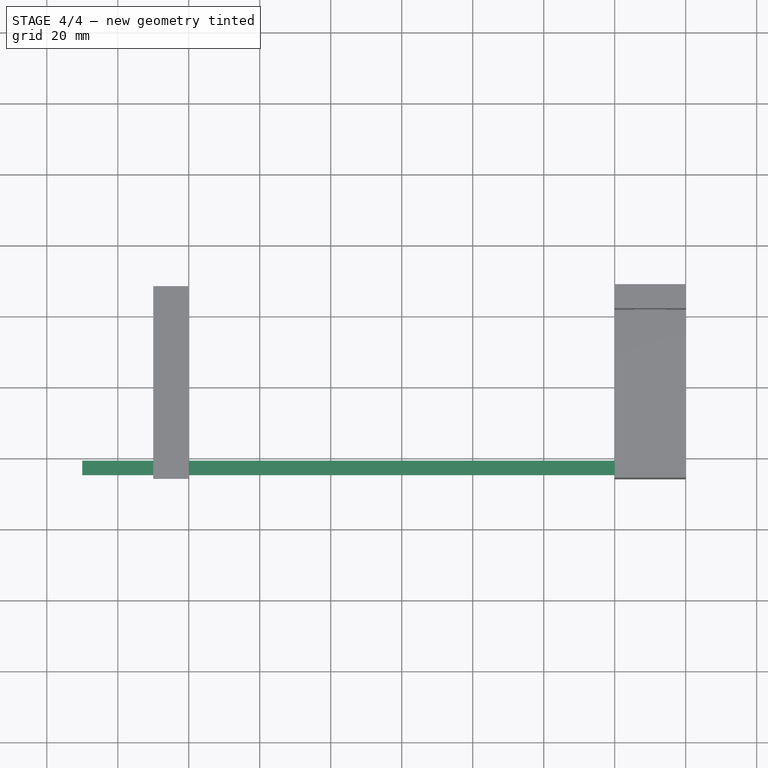
[diagram: stage 4 of 4 — top view after this stage's code; geometry added in this stage tinted green]
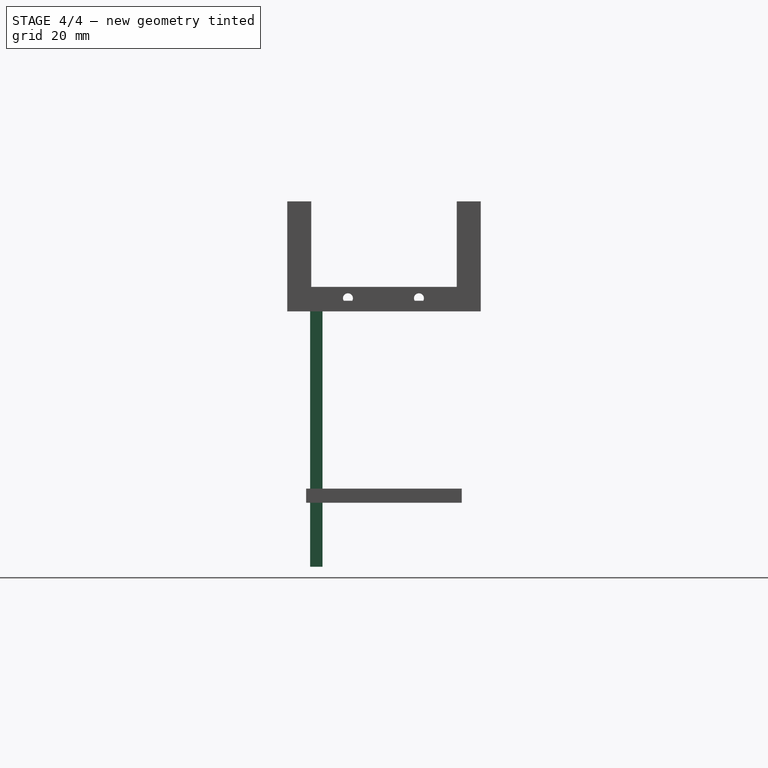
[diagram: stage 4 of 4 — right view after this stage's code; geometry added in this stage tinted green]
FEATURE [PartDesign::Body] Body
  Group = -> [Sketch001,Sketch,Pad,Pocket,Sketch002,Pocket001]
  Origin = -> Origin001
  Tip = -> Pocket001
FEATURE [App::Part] Part  label="ServoHolderPart"
  Group = -> [Body]
  Origin = -> Origin
FEATURE [Sketcher::SketchObject] Sketch003  label="HorizontalSupport001"
  FullyConstrained = false
  Placement = pos=(3e-15,0,0) rot=(0.57735,0.57735,-0.57735;4.18879rad)
  sketch-geometry (4):
    g0: LineSegment StartX=-25.8969 StartY=20.9914 StartZ=0 EndX=-21.8969 EndY=20.9914 EndZ=0
    g1: LineSegment StartX=-21.8969 StartY=20.9914 StartZ=0 EndX=-21.8969 EndY=16.9914 EndZ=0
    g2: LineSegment StartX=-21.8969 StartY=16.9914 StartZ=0 EndX=-25.8969 EndY=16.9914 EndZ=0
    g3: LineSegment StartX=-25.8969 StartY=16.9914 StartZ=0 EndX=-25.8969 EndY=20.9914 EndZ=0
  constraints (10):
    c: Coincident(g0,g1)
    c: Coincident(g1,g2)
    c: Coincident(g2,g3)
    c: Coincident(g3,g0)
    c: Horizontal(g0)
    c: Horizontal(g2)
    c: Vertical(g1)
    c: Vertical(g3)
    c: Equal(g0,g1)
    c: DistanceY(g1,g1) = 4
FEATURE [PartDesign::Pad] Pad001
  Direction = (1,1,1)
  Length = 150
  Length2 = 100
  Placement = pos=(3e-15,0,0) rot=(0.57735,0.57735,-0.57735;4.18879rad)
  Profile = -> Sketch003
  Type = 0
FEATURE [PartDesign::Body] Body001
  Group = -> [Sketch003,Pad001]
  Origin = -> Origin003
  Tip = -> Pad001
FEATURE [App::Part] Part001  label="Connector4x4x120mm"
  Group = -> [Body001]
  Origin = -> Origin002
FEATURE [Sketcher::SketchObject] Sketch008
  FullyConstrained = false
  Placement = pos=(-120,-7e-15,-22.4909) rot=(0.707107,-0.707107,0;3.14159rad)
  sketch-geometry (6):
    g0: LineSegment StartX=17.1768 StartY=6.75 StartZ=0 EndX=20.6768 EndY=6.75 EndZ=0
    g1: LineSegment StartX=20.6768 StartY=6.75 StartZ=0 EndX=20.6768 EndY=3.25 EndZ=0
    g2: LineSegment StartX=20.6768 StartY=3.25 StartZ=0 EndX=17.1768 EndY=3.25 EndZ=0
    g3: LineSegment StartX=17.1768 StartY=3.25 StartZ=0 EndX=17.1768 EndY=6.75 EndZ=0
    g4: LineSegment StartX=17.1768 StartY=3.25 StartZ=0 EndX=17.1768 EndY=0 EndZ=0
    g5: LineSegment StartX=17.1768 StartY=6.75 StartZ=0 EndX=17.1768 EndY=10 EndZ=0
  constraints (16):
    c: Coincident(g0,g1)
    c: Coincident(g1,g2)
    c: Coincident(g2,g3)
    c: Coincident(g3,g0)
    c: Horizontal(g0)
    c: Horizontal(g2)
    c: Vertical(g1)
    c: Vertical(g3)
    c: Equal(g0,g1)
    c: DistanceX(g0,g0) = 3.5
    c: Coincident(g4,g2)
    c: PointOnObject(g4,g-1)
    c: Vertical(g4)
    c: Coincident(g5,g0)
    c: Vertical(g5)
    c: Equal(g5,g4)
FEATURE [PartDesign::Pad] Pad003
  Direction = (1,1,1)
  Length = 72
  Length2 = 100
  Placement = pos=(-120,-7e-15,-22.4909) rot=(0.707107,-0.707107,0;3.14159rad)
  Profile = -> Sketch008
  Type = 0
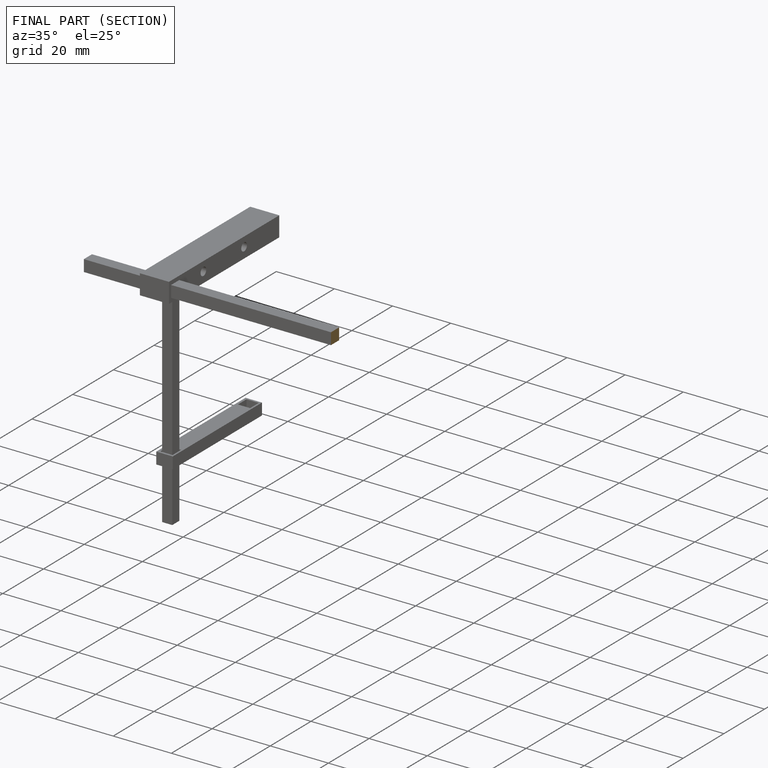
[diagram: finished part — half-section view (interior)]
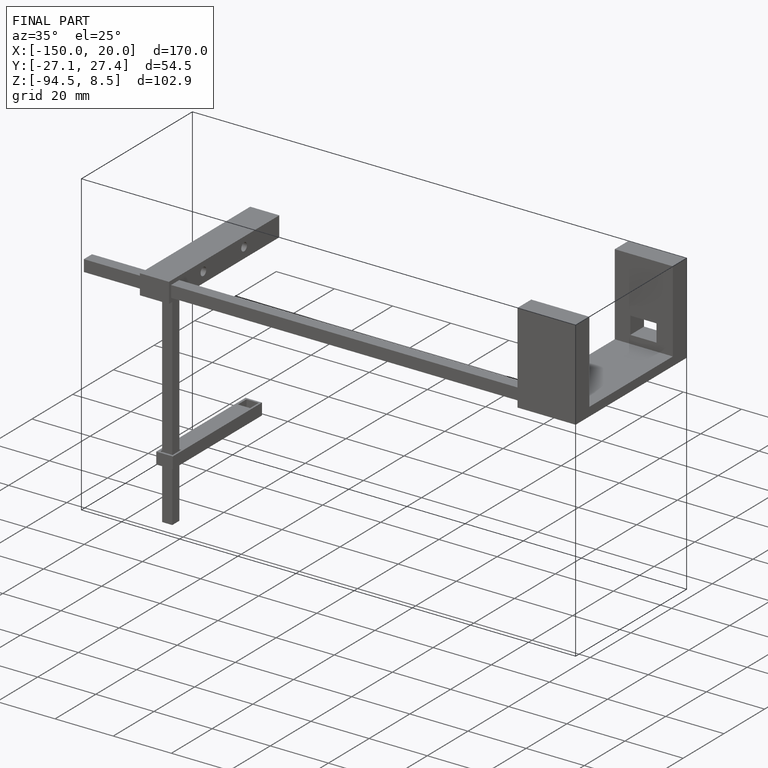
[diagram: finished part — iso view with bounding-box wireframe]
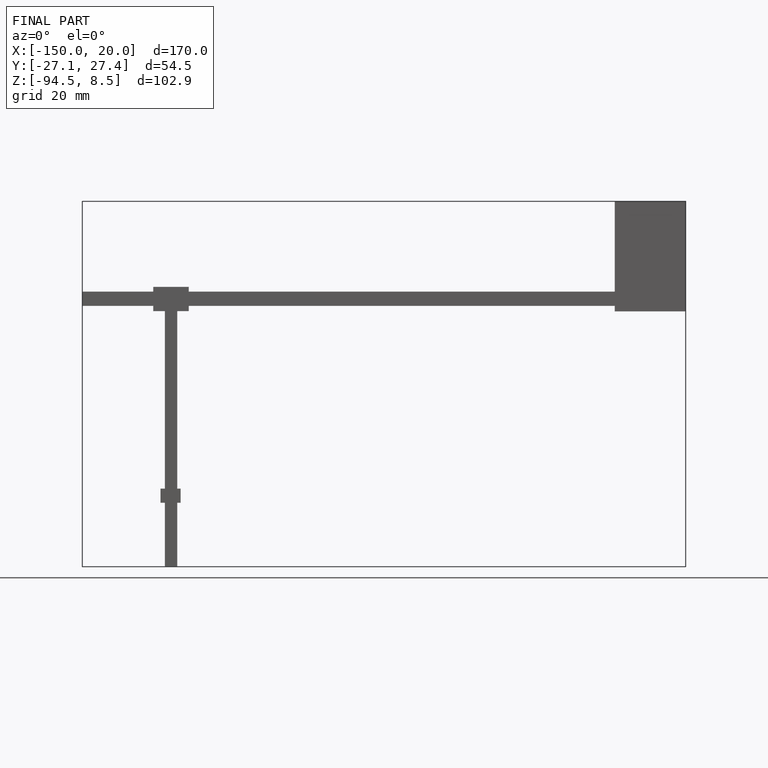
[diagram: finished part — front view with bounding-box wireframe]
